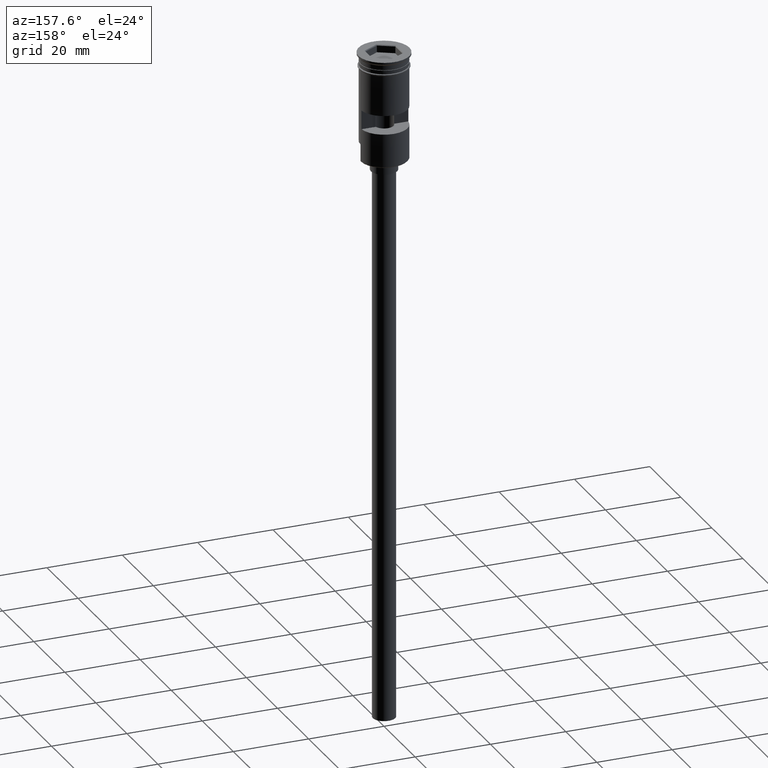
[diagram: clean part render]
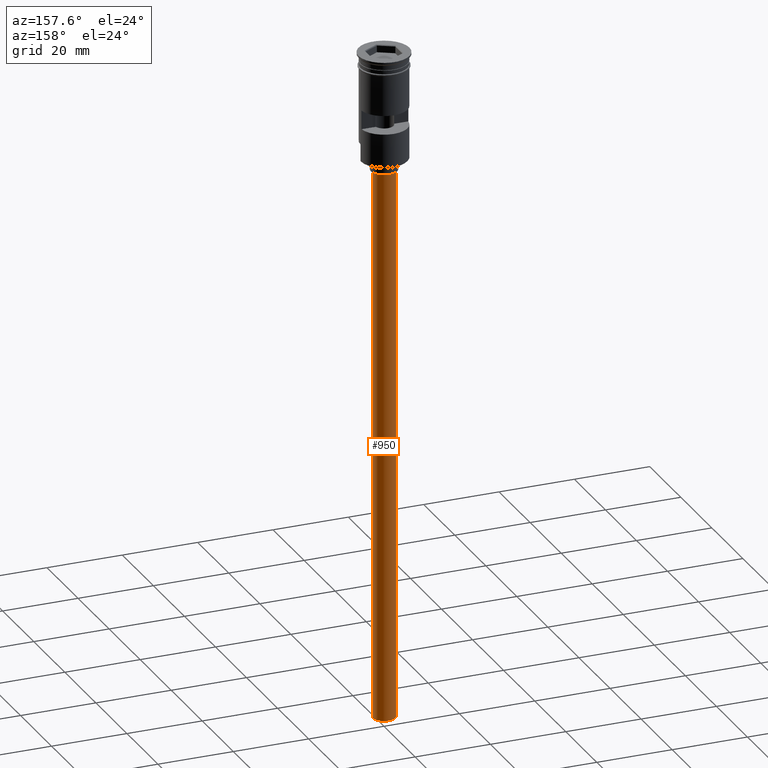
[diagram: same view with one face highlighted and labeled with its STEP entity id]
A machine part, auxiliary view. The second image highlights one B-rep face of the part: STEP entity #950.
In plain terms, the highlighted cylindrical surface (edge-blend (fillet) strip) has radius 3 mm, axis along (-0, -0, 1).
Its self-contained STEP definition (entity closure, byte-faithful):
#42 = CARTESIAN_POINT ( 'NONE',  ( -3.000000000000000444, 3.673940397442060361E-16, -178.5000000000000000 ) ) ;
#72 = DIRECTION ( 'NONE',  ( -0.000000000000000000, -0.000000000000000000, 1.000000000000000000 ) ) ;
#94 = CARTESIAN_POINT ( 'NONE',  ( 0.000000000000000000, 0.000000000000000000, -31.50000000000000000 ) ) ;
#115 = ORIENTED_EDGE ( 'NONE', *, *, #203, .T. ) ;
#150 = ORIENTED_EDGE ( 'NONE', *, *, #1059, .F. ) ;
#164 = EDGE_LOOP ( 'NONE', ( #214, #1568, #115, #150 ) ) ;
#182 = CARTESIAN_POINT ( 'NONE',  ( 3.000000000000000444, 0.000000000000000000, -178.5000000000000000 ) ) ;
#194 = VERTEX_POINT ( 'NONE', #1452 ) ;
#203 = EDGE_CURVE ( 'NONE', #1461, #194, #1367, .T. ) ;
#214 = ORIENTED_EDGE ( 'NONE', *, *, #742, .F. ) ;
#225 = DIRECTION ( 'NONE',  ( -1.000000000000000000, 0.000000000000000000, 0.000000000000000000 ) ) ;
#280 = FACE_OUTER_BOUND ( 'NONE', #164, .T. ) ;
#313 = DIRECTION ( 'NONE',  ( 1.000000000000000000, 0.000000000000000000, 0.000000000000000000 ) ) ;
#345 = DIRECTION ( 'NONE',  ( -1.000000000000000000, 0.000000000000000000, 0.000000000000000000 ) ) ;
#349 = DIRECTION ( 'NONE',  ( 0.000000000000000000, 0.000000000000000000, -1.000000000000000000 ) ) ;
#365 = VECTOR ( 'NONE', #401, 1000.000000000000000 ) ;
#369 = VERTEX_POINT ( 'NONE', #964 ) ;
#387 = LINE ( 'NONE', #42, #365 ) ;
#401 = DIRECTION ( 'NONE',  ( -0.000000000000000000, -0.000000000000000000, 1.000000000000000000 ) ) ;
#451 = DIRECTION ( 'NONE',  ( 0.000000000000000000, 0.000000000000000000, -1.000000000000000000 ) ) ;
#469 = CARTESIAN_POINT ( 'NONE',  ( 0.000000000000000000, 0.000000000000000000, -178.5000000000000000 ) ) ;
#546 = DIRECTION ( 'NONE',  ( -0.000000000000000000, -0.000000000000000000, 1.000000000000000000 ) ) ;
#673 = AXIS2_PLACEMENT_3D ( 'NONE', #94, #451, #345 ) ;
#742 = EDGE_CURVE ( 'NONE', #369, #1573, #1559, .T. ) ;
#815 = EDGE_CURVE ( 'NONE', #369, #1461, #387, .T. ) ;
#923 = CARTESIAN_POINT ( 'NONE',  ( 0.000000000000000000, 0.000000000000000000, -178.5000000000000000 ) ) ;
#950 = ADVANCED_FACE ( 'NONE', ( #280 ), #1156, .T. ) ;
#951 = AXIS2_PLACEMENT_3D ( 'NONE', #923, #72, #313 ) ;
#964 = CARTESIAN_POINT ( 'NONE',  ( -3.000000000000000444, 3.673940397442060361E-16, -178.5000000000000000 ) ) ;
#1059 = EDGE_CURVE ( 'NONE', #1573, #194, #1079, .T. ) ;
#1079 = LINE ( 'NONE', #182, #1297 ) ;
#1140 = CARTESIAN_POINT ( 'NONE',  ( 3.000000000000000444, 0.000000000000000000, -178.5000000000000000 ) ) ;
#1146 = AXIS2_PLACEMENT_3D ( 'NONE', #469, #349, #225 ) ;
#1156 = CYLINDRICAL_SURFACE ( 'NONE', #951, 3.000000000000000444 ) ;
#1297 = VECTOR ( 'NONE', #546, 1000.000000000000000 ) ;
#1367 = CIRCLE ( 'NONE', #673, 3.000000000000000444 ) ;
#1452 = CARTESIAN_POINT ( 'NONE',  ( 3.000000000000000444, 0.000000000000000000, -31.50000000000000000 ) ) ;
#1461 = VERTEX_POINT ( 'NONE', #1495 ) ;
#1495 = CARTESIAN_POINT ( 'NONE',  ( -3.000000000000000444, 3.673940397442060361E-16, -31.50000000000000000 ) ) ;
#1559 = CIRCLE ( 'NONE', #1146, 3.000000000000000444 ) ;
#1568 = ORIENTED_EDGE ( 'NONE', *, *, #815, .T. ) ;
#1573 = VERTEX_POINT ( 'NONE', #1140 ) ;